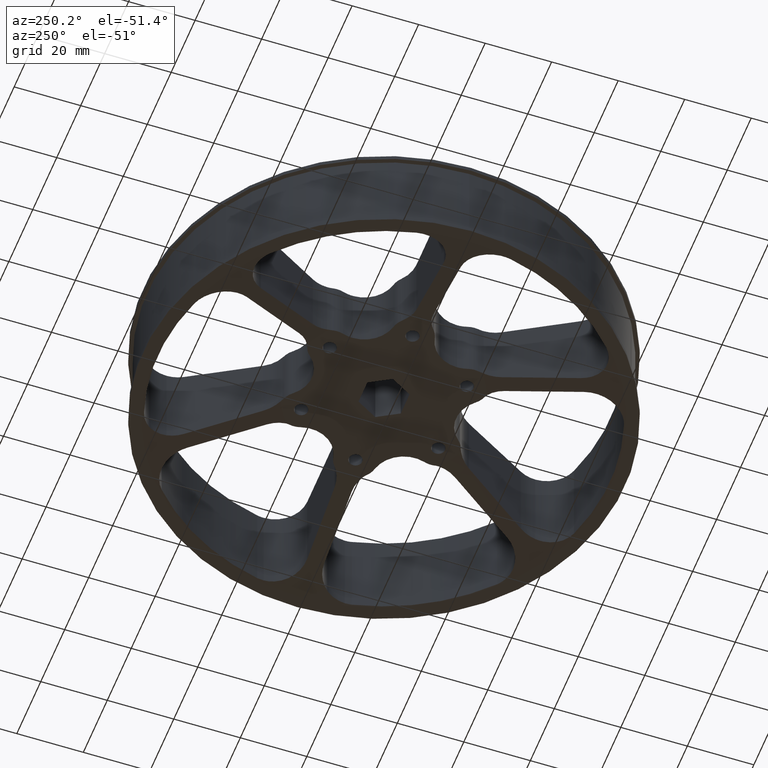
[diagram: clean part render]
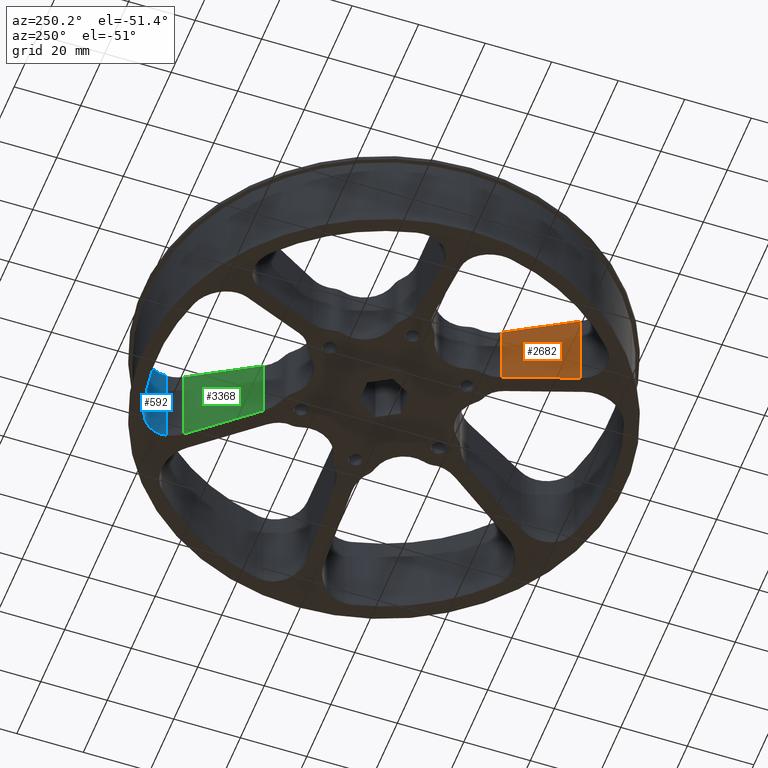
[diagram: same view with three faces highlighted in distinct colors, each labeled with its STEP entity id]
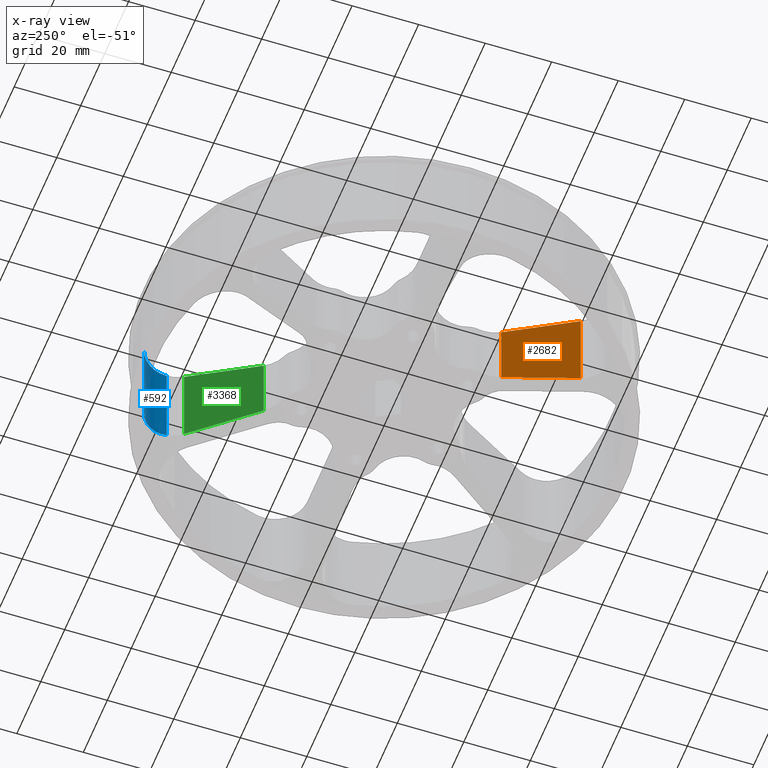
[diagram: x-ray of the same camera — body ghosted, the three highlighted faces saturated]
A machine part, auxiliary view with three faces highlighted in distinct colors.
The next image is the same camera in x-ray (body ghosted, the three faces saturated) — at least one of them is partly hidden behind the body in this view.
Their STEP definitions:

[orange] entity #2682 — the highlighted planar face has unit normal (0.866, -0.5, 0).
#161 = CARTESIAN_POINT ( 'NONE',  ( -1.208723857349127018, -1.893571133249301486, 1.125000000000000000 ) ) ;
#169 = PLANE ( 'NONE',  #955 ) ;
#304 = VERTEX_POINT ( 'NONE', #1744 ) ;
#685 = LINE ( 'NONE', #1434, #4119 ) ;
#787 = LINE ( 'NONE', #1523, #1554 ) ;
#950 = DIRECTION ( 'NONE',  ( 0.5000000000000043299, 0.8660254037844360431, 0.0000000000000000000 ) ) ;
#955 = AXIS2_PLACEMENT_3D ( 'NONE', #2823, #1481, #3228 ) ;
#1160 = ORIENTED_EDGE ( 'NONE', *, *, #3893, .T. ) ;
#1204 = B_SPLINE_CURVE_WITH_KNOTS ( 'NONE', 3,
 ( #3678, #1328, #2024, #1779 ),
 .UNSPECIFIED., .F., .F.,
 ( 4, 4 ),
 ( 0.01120379814011732318, 0.03467888712090325815 ),
 .UNSPECIFIED. ) ;
#1267 = ORIENTED_EDGE ( 'NONE', *, *, #3409, .F. ) ;
#1299 = VECTOR ( 'NONE', #2826, 39.37007874015748143 ) ;
#1328 = CARTESIAN_POINT ( 'NONE',  ( -1.058946164977367266, -1.634148560220994861, 0.1809588936208283705 ) ) ;
#1434 = CARTESIAN_POINT ( 'NONE',  ( -1.208723857349127018, -1.893571133249301486, 1.125000000000000000 ) ) ;
#1481 = DIRECTION ( 'NONE',  ( 0.8660254037844362651, -0.5000000000000043299, 0.0000000000000000000 ) ) ;
#1523 = CARTESIAN_POINT ( 'NONE',  ( -1.423167634191697006, -2.264998650107590716, 1.125000000000000000 ) ) ;
#1554 = VECTOR ( 'NONE', #950, 39.37007874015748143 ) ;
#1695 = EDGE_LOOP ( 'NONE', ( #1267, #1823, #1160, #3734 ) ) ;
#1744 = CARTESIAN_POINT ( 'NONE',  ( -1.208723857349127018, -1.893571133249301486, 0.1090217662803022736 ) ) ;
#1779 = CARTESIAN_POINT ( 'NONE',  ( -0.7593745980094864789, -1.115275385729609159, 0.3246983252277152454 ) ) ;
#1816 = CARTESIAN_POINT ( 'NONE',  ( -0.7593745980094864789, -1.115275385729609159, 0.0000000000000000000 ) ) ;
#1823 = ORIENTED_EDGE ( 'NONE', *, *, #3916, .T. ) ;
#1913 = DIRECTION ( 'NONE',  ( -0.0000000000000000000, -0.0000000000000000000, 1.000000000000000000 ) ) ;
#2024 = CARTESIAN_POINT ( 'NONE',  ( -0.9091666662923785225, -1.374722858566401751, 0.2528809715653635437 ) ) ;
#2544 = CARTESIAN_POINT ( 'NONE',  ( -0.7593745980094864789, -1.115275385729609159, 0.3246983252277152454 ) ) ;
#2682 = ADVANCED_FACE ( 'NONE', ( #4083 ), #169, .F. ) ;
#2711 = VERTEX_POINT ( 'NONE', #2544 ) ;
#2823 = CARTESIAN_POINT ( 'NONE',  ( -1.423167634191697006, -2.264998650107590716, 0.0000000000000000000 ) ) ;
#2826 = DIRECTION ( 'NONE',  ( -0.0000000000000000000, -0.0000000000000000000, 1.000000000000000000 ) ) ;
#3228 = DIRECTION ( 'NONE',  ( 0.5000000000000042188, 0.8660254037844361541, 0.0000000000000000000 ) ) ;
#3409 = EDGE_CURVE ( 'NONE', #304, #2711, #1204, .T. ) ;
#3546 = CARTESIAN_POINT ( 'NONE',  ( -0.7593745980094864789, -1.115275385729609159, 1.125000000000000000 ) ) ;
#3678 = CARTESIAN_POINT ( 'NONE',  ( -1.208723857349127018, -1.893571133249301486, 0.1090217662803022736 ) ) ;
#3734 = ORIENTED_EDGE ( 'NONE', *, *, #3805, .F. ) ;
#3747 = VERTEX_POINT ( 'NONE', #3546 ) ;
#3805 = EDGE_CURVE ( 'NONE', #2711, #3747, #3971, .T. ) ;
#3893 = EDGE_CURVE ( 'NONE', #4256, #3747, #787, .T. ) ;
#3916 = EDGE_CURVE ( 'NONE', #304, #4256, #685, .T. ) ;
#3971 = LINE ( 'NONE', #1816, #1299 ) ;
#4083 = FACE_OUTER_BOUND ( 'NONE', #1695, .T. ) ;
#4119 = VECTOR ( 'NONE', #1913, 39.37007874015748143 ) ;
#4256 = VERTEX_POINT ( 'NONE', #161 ) ;

[blue] entity #592 — the highlighted cylindrical surface (edge-blend (fillet) strip) has radius 9.652 mm, axis along (-0, -0, 1).
#225 = CARTESIAN_POINT ( 'NONE',  ( 1.036333790412315992, 2.372417308647429390, 0.02671221852332338401 ) ) ;
#418 = AXIS2_PLACEMENT_3D ( 'NONE', #1468, #3819, #2837 ) ;
#492 = VERTEX_POINT ( 'NONE', #2542 ) ;
#518 = VECTOR ( 'NONE', #4171, 39.37007874015748143 ) ;
#550 = CARTESIAN_POINT ( 'NONE',  ( 1.020440763945381857, 2.397803257919151498, 0.02262143834437485221 ) ) ;
#592 = ADVANCED_FACE ( 'NONE', ( #2121 ), #2273, .F. ) ;
#684 = VERTEX_POINT ( 'NONE', #3013 ) ;
#844 = CARTESIAN_POINT ( 'NONE',  ( 0.8233977797113049002, 2.545121037665299735, 0.006009615384615751843 ) ) ;
#853 = CARTESIAN_POINT ( 'NONE',  ( 0.8233977797113052333, 2.545121037665300179, 0.0000000000000000000 ) ) ;
#864 = AXIS2_PLACEMENT_3D ( 'NONE', #2237, #2929, #940 ) ;
#894 = CARTESIAN_POINT ( 'NONE',  ( 0.9901614705514883985, 2.437136652271250092, 0.01669811749998337258 ) ) ;
#940 = DIRECTION ( 'NONE',  ( 1.000000000000000000, 0.0000000000000000000, 0.0000000000000000000 ) ) ;
#1175 = DIRECTION ( 'NONE',  ( -0.0000000000000000000, -0.0000000000000000000, 1.000000000000000000 ) ) ;
#1217 = CARTESIAN_POINT ( 'NONE',  ( 0.9465493905402152519, 2.478771655794274054, 0.01123086356925841363 ) ) ;
#1386 = B_SPLINE_CURVE_WITH_KNOTS ( 'NONE', 3,
 ( #2865, #3197, #3533, #1528, #3881, #1872, #4208, #2209, #225, #2543, #550, #2886, #894, #3213, #1217, #3555, #1543, #3898, #1889, #4225 ),
 .UNSPECIFIED., .F., .F.,
 ( 4, 2, 2, 2, 2, 2, 2, 2, 2, 4 ),
 ( 0.005164783138231520895, 0.006688038910756186062, 0.008211294683280849493, 0.009734550455805516395, 0.01049617834206784811, 0.01125780622833017983, 0.01278106200085483285, 0.01430431777337947200, 0.01582757354590411114, 0.01735082931842875029 ),
 .UNSPECIFIED. ) ;
#1447 = VECTOR ( 'NONE', #1175, 39.37007874015748143 ) ;
#1468 = CARTESIAN_POINT ( 'NONE',  ( 0.7064291231541851568, 2.183571133249294860, 1.125000000000000000 ) ) ;
#1528 = CARTESIAN_POINT ( 'NONE',  ( 1.078797038918623885, 2.261904585519353805, 0.04664171059715459255 ) ) ;
#1543 = CARTESIAN_POINT ( 'NONE',  ( 0.8971778035947778340, 2.512837718398221121, 0.007662424957215465023 ) ) ;
#1872 = CARTESIAN_POINT ( 'NONE',  ( 1.062141725874128806, 2.318686401782258599, 0.03597412338323679321 ) ) ;
#1889 = CARTESIAN_POINT ( 'NONE',  ( 0.8427039705542325176, 2.538875097122790692, 0.006009615384615709342 ) ) ;
#1916 = EDGE_LOOP ( 'NONE', ( #4012, #3543, #3537, #3770 ) ) ;
#2114 = EDGE_CURVE ( 'NONE', #492, #2693, #1386, .T. ) ;
#2121 = FACE_OUTER_BOUND ( 'NONE', #1916, .T. ) ;
#2209 = CARTESIAN_POINT ( 'NONE',  ( 1.041217323572407372, 2.363615426245174511, 0.02817790753336502432 ) ) ;
#2237 = CARTESIAN_POINT ( 'NONE',  ( 0.7064291231541851568, 2.183571133249294860, 0.0000000000000000000 ) ) ;
#2273 = CYLINDRICAL_SURFACE ( 'NONE', #864, 0.3799999999999998934 ) ;
#2298 = LINE ( 'NONE', #3058, #518 ) ;
#2432 = CARTESIAN_POINT ( 'NONE',  ( 1.086429123154185161, 2.183571133249294860, 1.125000000000000000 ) ) ;
#2542 = CARTESIAN_POINT ( 'NONE',  ( 1.086429123154185161, 2.183571133249294860, 0.06276058290869360179 ) ) ;
#2543 = CARTESIAN_POINT ( 'NONE',  ( 1.025946544349510159, 2.389504581221912005, 0.02393529650200152889 ) ) ;
#2693 = VERTEX_POINT ( 'NONE', #844 ) ;
#2837 = DIRECTION ( 'NONE',  ( 1.000000000000000000, -1.437814733507507435E-15, 0.0000000000000000000 ) ) ;
#2865 = CARTESIAN_POINT ( 'NONE',  ( 1.086429123154185161, 2.183571133249294860, 0.06276058290869360179 ) ) ;
#2886 = CARTESIAN_POINT ( 'NONE',  ( 1.003004753666665971, 2.421977824761690101, 0.01889564882078173177 ) ) ;
#2929 = DIRECTION ( 'NONE',  ( -0.0000000000000000000, -0.0000000000000000000, 1.000000000000000000 ) ) ;
#2945 = EDGE_CURVE ( 'NONE', #684, #3426, #3444, .T. ) ;
#2984 = EDGE_CURVE ( 'NONE', #2693, #684, #4127, .T. ) ;
#3013 = CARTESIAN_POINT ( 'NONE',  ( 0.8233977797113049002, 2.545121037665299735, 1.125000000000000000 ) ) ;
#3058 = CARTESIAN_POINT ( 'NONE',  ( 1.086429123154185161, 2.183571133249294860, 0.0000000000000000000 ) ) ;
#3197 = CARTESIAN_POINT ( 'NONE',  ( 1.086429123154185161, 2.203108526128853661, 0.05855579799661310425 ) ) ;
#3213 = CARTESIAN_POINT ( 'NONE',  ( 0.9619943729157197643, 2.465503608340019248, 0.01286771057395577275 ) ) ;
#3426 = VERTEX_POINT ( 'NONE', #2432 ) ;
#3444 = CIRCLE ( 'NONE', #418, 0.3799999999999998934 ) ;
#3533 = CARTESIAN_POINT ( 'NONE',  ( 1.084931786460720193, 2.222682874519119611, 0.05449247516796892205 ) ) ;
#3537 = ORIENTED_EDGE ( 'NONE', *, *, #2945, .F. ) ;
#3543 = ORIENTED_EDGE ( 'NONE', *, *, #3800, .T. ) ;
#3555 = CARTESIAN_POINT ( 'NONE',  ( 0.9141892401480418151, 2.502376442344151464, 0.008637521523666017234 ) ) ;
#3770 = ORIENTED_EDGE ( 'NONE', *, *, #2984, .F. ) ;
#3800 = EDGE_CURVE ( 'NONE', #492, #3426, #2298, .T. ) ;
#3819 = DIRECTION ( 'NONE',  ( -0.0000000000000000000, -0.0000000000000000000, -1.000000000000000000 ) ) ;
#3881 = CARTESIAN_POINT ( 'NONE',  ( 1.074200106125244636, 2.281203584867760981, 0.04292510599061946652 ) ) ;
#3898 = CARTESIAN_POINT ( 'NONE',  ( 0.8614897534448141547, 2.531073283054637191, 0.006347703254778657919 ) ) ;
#4012 = ORIENTED_EDGE ( 'NONE', *, *, #2114, .F. ) ;
#4127 = LINE ( 'NONE', #853, #1447 ) ;
#4171 = DIRECTION ( 'NONE',  ( -0.0000000000000000000, -0.0000000000000000000, 1.000000000000000000 ) ) ;
#4208 = CARTESIAN_POINT ( 'NONE',  ( 1.054667861080544444, 2.336953425988995026, 0.03272314577106602562 ) ) ;
#4225 = CARTESIAN_POINT ( 'NONE',  ( 0.8233977797113049002, 2.545121037665299735, 0.006009615384615751843 ) ) ;

[green] entity #3368 — the highlighted planar face has unit normal (0.866, -0.5, 0).
#112 = VERTEX_POINT ( 'NONE', #676 ) ;
#237 = EDGE_CURVE ( 'NONE', #2976, #112, #3387, .T. ) ;
#314 = CARTESIAN_POINT ( 'NONE',  ( 1.249962553434842416, 2.364998650107573930, 0.0000000000000000000 ) ) ;
#466 = AXIS2_PLACEMENT_3D ( 'NONE', #314, #3987, #4315 ) ;
#528 = LINE ( 'NONE', #2901, #3184 ) ;
#569 = VERTEX_POINT ( 'NONE', #3925 ) ;
#676 = CARTESIAN_POINT ( 'NONE',  ( 1.035518776592268875, 1.993571133249289140, 0.1090217662803015519 ) ) ;
#803 = DIRECTION ( 'NONE',  ( 0.0000000000000000000, 0.0000000000000000000, -1.000000000000000000 ) ) ;
#856 = EDGE_CURVE ( 'NONE', #569, #112, #2635, .T. ) ;
#866 = VECTOR ( 'NONE', #803, 39.37007874015748143 ) ;
#913 = DIRECTION ( 'NONE',  ( 0.5000000000000150990, 0.8660254037844299368, 0.0000000000000000000 ) ) ;
#1039 = EDGE_LOOP ( 'NONE', ( #1156, #2704, #3749, #1879 ) ) ;
#1075 = CARTESIAN_POINT ( 'NONE',  ( 0.5861695172526178998, 1.215275385729601032, 0.3246983252277151344 ) ) ;
#1156 = ORIENTED_EDGE ( 'NONE', *, *, #2689, .T. ) ;
#1163 = LINE ( 'NONE', #4115, #2037 ) ;
#1373 = EDGE_CURVE ( 'NONE', #2976, #2342, #1163, .T. ) ;
#1578 = CARTESIAN_POINT ( 'NONE',  ( 0.5861695172526178998, 1.215275385729601032, 1.125000000000000000 ) ) ;
#1737 = CARTESIAN_POINT ( 'NONE',  ( 0.8857410842205055701, 1.734148560220984292, 0.1809588936208277876 ) ) ;
#1877 = FACE_OUTER_BOUND ( 'NONE', #1039, .T. ) ;
#1879 = ORIENTED_EDGE ( 'NONE', *, *, #1373, .T. ) ;
#2037 = VECTOR ( 'NONE', #3439, 39.37007874015748143 ) ;
#2342 = VERTEX_POINT ( 'NONE', #1578 ) ;
#2635 = LINE ( 'NONE', #2789, #866 ) ;
#2689 = EDGE_CURVE ( 'NONE', #2342, #569, #528, .T. ) ;
#2704 = ORIENTED_EDGE ( 'NONE', *, *, #856, .T. ) ;
#2789 = CARTESIAN_POINT ( 'NONE',  ( 1.035518776592268875, 1.993571133249289140, 0.006009615384615699801 ) ) ;
#2901 = CARTESIAN_POINT ( 'NONE',  ( 1.249962553434842416, 2.364998650107573930, 1.125000000000000000 ) ) ;
#2975 = PLANE ( 'NONE',  #466 ) ;
#2976 = VERTEX_POINT ( 'NONE', #4153 ) ;
#3184 = VECTOR ( 'NONE', #913, 39.37007874015748143 ) ;
#3368 = ADVANCED_FACE ( 'NONE', ( #1877 ), #2975, .F. ) ;
#3387 = B_SPLINE_CURVE_WITH_KNOTS ( 'NONE', 3,
 ( #1075, #3745, #1737, #4084 ),
 .UNSPECIFIED., .F., .F.,
 ( 4, 4 ),
 ( 2.374831638847536988E-07, 0.02347532646394986239 ),
 .UNSPECIFIED. ) ;
#3439 = DIRECTION ( 'NONE',  ( -0.0000000000000000000, -0.0000000000000000000, 1.000000000000000000 ) ) ;
#3745 = CARTESIAN_POINT ( 'NONE',  ( 0.7359615855355133851, 1.474722858566392514, 0.2528809715653632662 ) ) ;
#3749 = ORIENTED_EDGE ( 'NONE', *, *, #237, .F. ) ;
#3925 = CARTESIAN_POINT ( 'NONE',  ( 1.035518776592268875, 1.993571133249289140, 1.125000000000000000 ) ) ;
#3987 = DIRECTION ( 'NONE',  ( 0.8660254037844299368, -0.5000000000000152101, 0.0000000000000000000 ) ) ;
#4084 = CARTESIAN_POINT ( 'NONE',  ( 1.035518776592268875, 1.993571133249289140, 0.1090217662803015519 ) ) ;
#4115 = CARTESIAN_POINT ( 'NONE',  ( 0.5861695172526178998, 1.215275385729601032, 0.0000000000000000000 ) ) ;
#4153 = CARTESIAN_POINT ( 'NONE',  ( 0.5861695172526178998, 1.215275385729601032, 0.3246983252277151344 ) ) ;
#4315 = DIRECTION ( 'NONE',  ( 0.5000000000000152101, 0.8660254037844299368, 0.0000000000000000000 ) ) ;